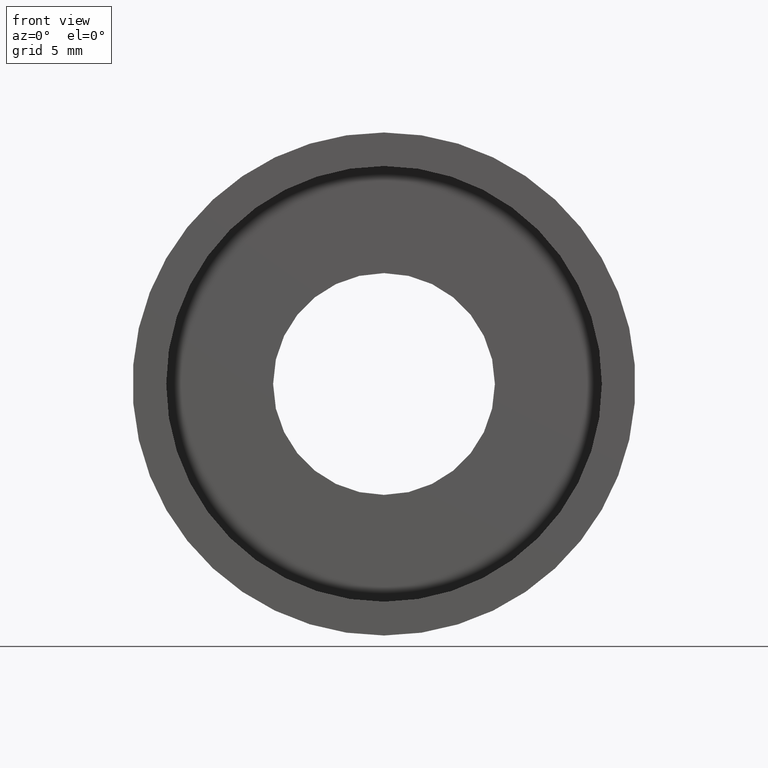
[diagram: clean part render]
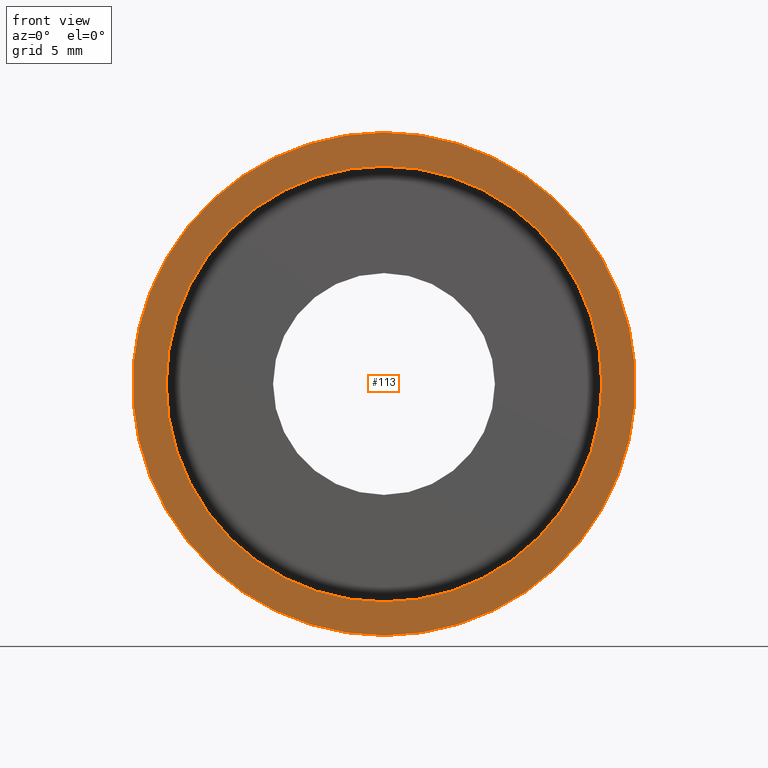
[diagram: same view with one face highlighted and labeled with its STEP entity id]
A machine part, front view. The second image highlights one B-rep face of the part: STEP entity #113.
In plain terms, the highlighted planar face has unit normal (-0, 1, 0).
Its self-contained STEP definition (entity closure, byte-faithful):
#5 = EDGE_LOOP ( 'NONE', ( #154, #112 ) ) ;
#19 = VERTEX_POINT ( 'NONE', #143 ) ;
#20 = CIRCLE ( 'NONE', #396, 13.75000000000000700 ) ;
#21 = ORIENTED_EDGE ( 'NONE', *, *, #245, .F. ) ;
#30 = CARTESIAN_POINT ( 'NONE',  ( 1.683889348827611600E-015, 0.0000000000000000000, -13.75000000000000700 ) ) ;
#100 = CARTESIAN_POINT ( 'NONE',  ( 1.944126793646423600E-015, 0.0000000000000000000, -15.87500000000000400 ) ) ;
#101 = ORIENTED_EDGE ( 'NONE', *, *, #311, .F. ) ;
#112 = ORIENTED_EDGE ( 'NONE', *, *, #146, .T. ) ;
#113 = ADVANCED_FACE ( 'NONE', ( #199, #374 ), #379, .F. ) ;
#126 = AXIS2_PLACEMENT_3D ( 'NONE', #174, #299, #382 ) ;
#143 = CARTESIAN_POINT ( 'NONE',  ( 0.0000000000000000000, 0.0000000000000000000, 15.87500000000000400 ) ) ;
#146 = EDGE_CURVE ( 'NONE', #221, #349, #20, .T. ) ;
#154 = ORIENTED_EDGE ( 'NONE', *, *, #389, .T. ) ;
#174 = CARTESIAN_POINT ( 'NONE',  ( 0.0000000000000000000, 0.0000000000000000000, 0.0000000000000000000 ) ) ;
#180 = DIRECTION ( 'NONE',  ( -0.0000000000000000000, 1.000000000000000000, -0.0000000000000000000 ) ) ;
#185 = CIRCLE ( 'NONE', #126, 13.75000000000000700 ) ;
#191 = DIRECTION ( 'NONE',  ( 0.0000000000000000000, 0.0000000000000000000, 1.000000000000000000 ) ) ;
#199 = FACE_OUTER_BOUND ( 'NONE', #203, .T. ) ;
#203 = EDGE_LOOP ( 'NONE', ( #21, #101 ) ) ;
#205 = AXIS2_PLACEMENT_3D ( 'NONE', #368, #358, #191 ) ;
#214 = CARTESIAN_POINT ( 'NONE',  ( 0.0000000000000000000, 0.0000000000000000000, 0.0000000000000000000 ) ) ;
#221 = VERTEX_POINT ( 'NONE', #30 ) ;
#245 = EDGE_CURVE ( 'NONE', #19, #415, #250, .T. ) ;
#249 = DIRECTION ( 'NONE',  ( 0.0000000000000000000, 0.0000000000000000000, 1.000000000000000000 ) ) ;
#250 = CIRCLE ( 'NONE', #347, 15.87500000000000400 ) ;
#297 = CARTESIAN_POINT ( 'NONE',  ( 15.87500000000000400, -3.245314017740484500E-016, 0.0000000000000000000 ) ) ;
#299 = DIRECTION ( 'NONE',  ( -0.0000000000000000000, 1.000000000000000000, -0.0000000000000000000 ) ) ;
#300 = DIRECTION ( 'NONE',  ( -0.0000000000000000000, 1.000000000000000000, 0.0000000000000000000 ) ) ;
#311 = EDGE_CURVE ( 'NONE', #415, #19, #327, .T. ) ;
#327 = CIRCLE ( 'NONE', #205, 15.87500000000000400 ) ;
#332 = CARTESIAN_POINT ( 'NONE',  ( 0.0000000000000000000, 0.0000000000000000000, 13.75000000000000700 ) ) ;
#346 = DIRECTION ( 'NONE',  ( -0.0000000000000000000, 1.000000000000000000, -0.0000000000000000000 ) ) ;
#347 = AXIS2_PLACEMENT_3D ( 'NONE', #422, #346, #249 ) ;
#349 = VERTEX_POINT ( 'NONE', #332 ) ;
#358 = DIRECTION ( 'NONE',  ( -0.0000000000000000000, 1.000000000000000000, -0.0000000000000000000 ) ) ;
#360 = DIRECTION ( 'NONE',  ( 0.0000000000000000000, 0.0000000000000000000, 1.000000000000000000 ) ) ;
#368 = CARTESIAN_POINT ( 'NONE',  ( 0.0000000000000000000, 0.0000000000000000000, 0.0000000000000000000 ) ) ;
#374 = FACE_BOUND ( 'NONE', #5, .T. ) ;
#379 = PLANE ( 'NONE',  #409 ) ;
#382 = DIRECTION ( 'NONE',  ( 0.0000000000000000000, 0.0000000000000000000, 1.000000000000000000 ) ) ;
#386 = DIRECTION ( 'NONE',  ( 0.0000000000000000000, 0.0000000000000000000, 1.000000000000000000 ) ) ;
#389 = EDGE_CURVE ( 'NONE', #349, #221, #185, .T. ) ;
#396 = AXIS2_PLACEMENT_3D ( 'NONE', #214, #180, #360 ) ;
#409 = AXIS2_PLACEMENT_3D ( 'NONE', #297, #300, #386 ) ;
#415 = VERTEX_POINT ( 'NONE', #100 ) ;
#422 = CARTESIAN_POINT ( 'NONE',  ( 0.0000000000000000000, 0.0000000000000000000, 0.0000000000000000000 ) ) ;